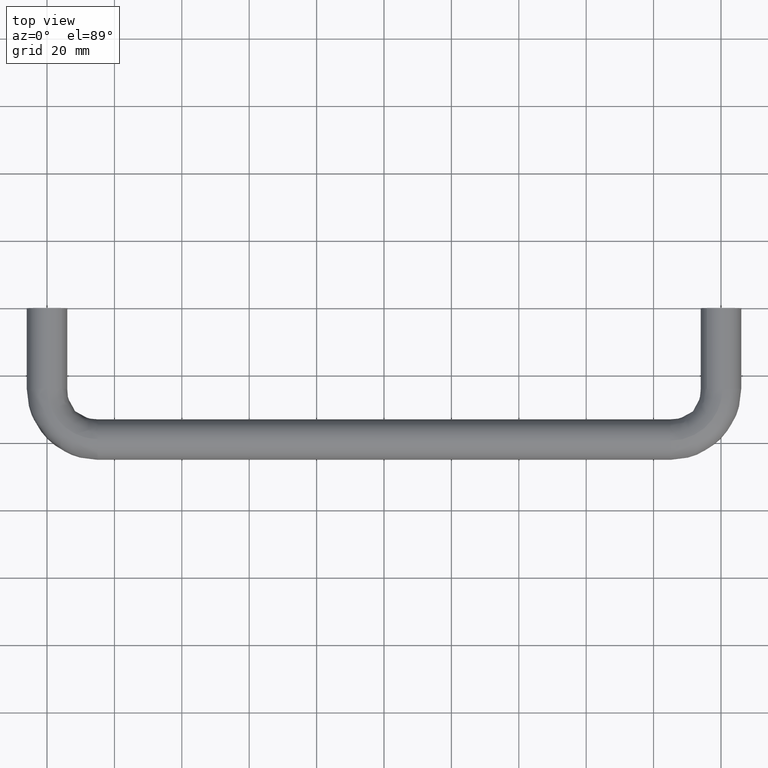
[diagram: clean part render]
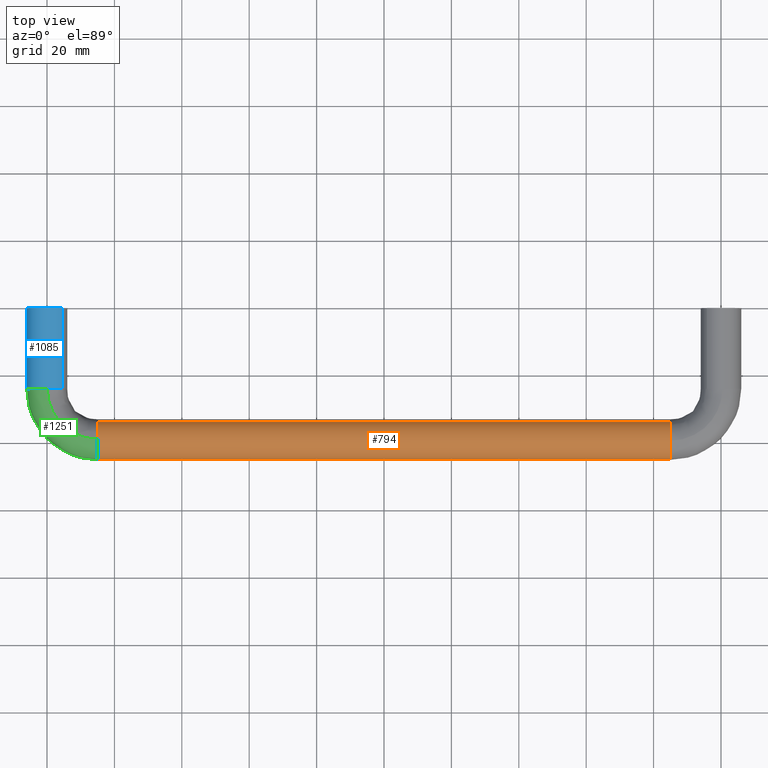
[diagram: same view with three faces highlighted in distinct colors, each labeled with its STEP entity id]
A machine part, top view with three faces highlighted in distinct colors.
Their STEP definitions:

[orange] entity #794 — the highlighted face is a freeform B-spline surface patch.
#624=CARTESIAN_POINT('',(10.749999999235488,-33.626367044185031,2.669095138090656));
#625=CARTESIAN_POINT('',(10.749999999235490,-34.027321464704933,3.476328217622891));
#626=CARTESIAN_POINT('',(10.749999999235490,-34.647753773926283,4.130127454162523));
#627=CARTESIAN_POINT('',(10.749999999235490,-38.777881228088788,8.482373680236247));
#628=CARTESIAN_POINT('',(10.749999999235490,-43.130127454162519,4.352246226073724));
#629=CARTESIAN_POINT('',(10.749999999235490,-47.482373680236243,0.222118771911202));
#630=CARTESIAN_POINT('',(10.749999999235490,-43.352246226073717,-4.130127454162523));
#631=CARTESIAN_POINT('',(10.749999999235488,-39.222118771911205,-8.482373680236247));
#632=CARTESIAN_POINT('',(10.749999999235490,-34.869872545837481,-4.352246226073724));
#633=CARTESIAN_POINT('',(189.356250001950540,-33.626367044184988,2.669095138090656));
#634=CARTESIAN_POINT('',(189.356250001950510,-34.027321464704897,3.476328217622891));
#635=CARTESIAN_POINT('',(189.356250001950510,-34.647753773926247,4.130127454162523));
#636=CARTESIAN_POINT('',(189.356250001950490,-38.777881228088773,8.482373680236247));
#637=CARTESIAN_POINT('',(189.356250001950510,-43.130127454162491,4.352246226073724));
#638=CARTESIAN_POINT('',(189.356250001950490,-47.482373680236208,0.222118771911202));
#639=CARTESIAN_POINT('',(189.356250001950510,-43.352246226073703,-4.130127454162523));
#640=CARTESIAN_POINT('',(189.356250001950490,-39.222118771911184,-8.482373680236247));
#641=CARTESIAN_POINT('',(189.356250001950510,-34.869872545837453,-4.352246226073724));
#649=(BOUNDED_SURFACE()B_SPLINE_SURFACE(2,1,((#624,#633),(#625,#634),(#626,#635),(#627,#636),(#628,#637),(#629,#638),(#630,#639),(#631,#640),(#632,#641)),.UNSPECIFIED.,.F.,.F.,.U.)B_SPLINE_SURFACE_WITH_KNOTS((3,2,2,2,3),(2,2),(0.0,1.988225099390856,11.929350596345140,21.870476093299420,31.811601590253701),(0.0,178.606250002715090),.UNSPECIFIED.)GEOMETRIC_REPRESENTATION_ITEM()RATIONAL_B_SPLINE_SURFACE(((0.906274169979695,0.906274169979695),(0.941421356237309,0.941421356237309),(1.0,1.0),(0.707106781186548,0.707106781186548),(1.0,1.0),(0.707106781186548,0.707106781186548),(1.0,1.0),(0.707106781186548,0.707106781186548),(1.0,1.0)))REPRESENTATION_ITEM('')SURFACE());
#650=CARTESIAN_POINT('',(185.0,-33.626367044212650,2.669095138146304));
#651=VERTEX_POINT('',#650);
#652=CARTESIAN_POINT('',(185.000000001884300,-39.418399516554373,5.985394042546160));
#653=VERTEX_POINT('',#652);
#654=CARTESIAN_POINT('',(184.999999999999970,-33.626367044212650,2.669095138146304));
#655=CARTESIAN_POINT('',(185.000000000000060,-35.280834709901974,6.000000000000001));
#656=CARTESIAN_POINT('',(185.0,-39.0,6.0));
#657=CARTESIAN_POINT('',(185.000000000000030,-39.209454702375979,6.0));
#658=CARTESIAN_POINT('',(185.000000001884330,-39.418399516554366,5.985394042546160));
#666=(BOUNDED_CURVE()B_SPLINE_CURVE(2,(#654,#655,#656,#657,#658),.UNSPECIFIED.,.F.,.U.)B_SPLINE_CURVE_WITH_KNOTS((3,2,3),(0.575619190625607,0.750000000000000,0.762166313872982),.UNSPECIFIED.)CURVE()GEOMETRIC_REPRESENTATION_ITEM()RATIONAL_B_SPLINE_CURVE((0.876408099965586,0.795700173772156,1.0,0.985746276674590,0.972879875523864))REPRESENTATION_ITEM(''));
#667=EDGE_CURVE('',#651,#653,#666,.T.);
#668=ORIENTED_EDGE('',*,*,#667,.F.);
#669=CARTESIAN_POINT('',(14.999999999962130,-33.626367044218853,2.669095138143554));
#670=VERTEX_POINT('',#669);
#671=CARTESIAN_POINT('',(14.999999999962130,-33.626367044218853,2.669095138143554));
#672=CARTESIAN_POINT('',(185.0,-33.626367044212650,2.669095138146304));
#673=QUASI_UNIFORM_CURVE('',1,(#671,#672),.UNSPECIFIED.,.F.,.U.);
#674=EDGE_CURVE('',#670,#651,#673,.T.);
#675=ORIENTED_EDGE('',*,*,#674,.F.);
#676=CARTESIAN_POINT('',(14.999999999641719,-38.924603760555939,5.999526265221087));
#677=VERTEX_POINT('',#676);
#678=CARTESIAN_POINT('',(14.999999999962130,-33.626367044218846,2.669095138143554));
#679=CARTESIAN_POINT('',(14.999999999863466,-35.257710391988013,5.953444298289303));
#680=CARTESIAN_POINT('',(14.999999999641721,-38.924603760555939,5.999526265221087));
#688=(BOUNDED_CURVE()B_SPLINE_CURVE(2,(#678,#679,#680),.UNSPECIFIED.,.F.,.U.)B_SPLINE_CURVE_WITH_KNOTS((3,3),(0.575619190625443,0.747784295913289),.UNSPECIFIED.)CURVE()GEOMETRIC_REPRESENTATION_ITEM()RATIONAL_B_SPLINE_CURVE((0.876408099965738,0.796725658643487,0.994854295624589))REPRESENTATION_ITEM(''));
#689=EDGE_CURVE('',#670,#677,#688,.T.);
#690=ORIENTED_EDGE('',*,*,#689,.T.);
#691=CARTESIAN_POINT('',(15.0,-45.0,0.0));
#692=VERTEX_POINT('',#691);
#693=CARTESIAN_POINT('',(14.999999999641719,-38.924603760555939,5.999526265221088));
#694=CARTESIAN_POINT('',(14.999999999999995,-38.962300391904698,5.999999999999999));
#695=CARTESIAN_POINT('',(15.0,-39.0,6.0));
#696=CARTESIAN_POINT('',(14.999999999999995,-45.0,6.0));
#697=CARTESIAN_POINT('',(15.0,-45.0,0.0));
#705=(BOUNDED_CURVE()B_SPLINE_CURVE(2,(#693,#694,#695,#696,#697),.UNSPECIFIED.,.F.,.U.)B_SPLINE_CURVE_WITH_KNOTS((3,2,3),(0.747784295913290,0.750000000000000,1.0),.UNSPECIFIED.)CURVE()GEOMETRIC_REPRESENTATION_ITEM()RATIONAL_B_SPLINE_CURVE((0.994854295624590,0.997404141192421,1.0,0.707106781186548,1.0))REPRESENTATION_ITEM(''));
#706=EDGE_CURVE('',#677,#692,#705,.T.);
#707=ORIENTED_EDGE('',*,*,#706,.T.);
#708=CARTESIAN_POINT('',(14.999999999300099,-39.418399512873421,-5.985394042803470));
#709=VERTEX_POINT('',#708);
#710=CARTESIAN_POINT('',(15.0,-45.0,0.0));
#711=CARTESIAN_POINT('',(15.000000000000005,-45.000000000000007,-5.595221077188548));
#712=CARTESIAN_POINT('',(14.999999999300096,-39.418399512873421,-5.985394042803470));
#720=(BOUNDED_CURVE()B_SPLINE_CURVE(2,(#710,#711,#712),.UNSPECIFIED.,.F.,.U.)B_SPLINE_CURVE_WITH_KNOTS((3,3),(0.0,0.237833686338552),.UNSPECIFIED.)CURVE()GEOMETRIC_REPRESENTATION_ITEM()RATIONAL_B_SPLINE_CURVE((1.0,0.721360504264130,0.972879875971277))REPRESENTATION_ITEM(''));
#721=EDGE_CURVE('',#692,#709,#720,.T.);
#722=ORIENTED_EDGE('',*,*,#721,.T.);
#723=CARTESIAN_POINT('',(15.0,-34.869874609136403,-4.352248184069436));
#724=VERTEX_POINT('',#723);
#725=CARTESIAN_POINT('',(14.999999999300098,-39.418399512873421,-5.985394042803470));
#726=CARTESIAN_POINT('',(15.000000000000002,-39.209454698681569,-6.000000000000001));
#727=CARTESIAN_POINT('',(15.0,-39.0,-6.0));
#728=CARTESIAN_POINT('',(15.000000000000005,-36.606244372761751,-6.000000000000002));
#729=CARTESIAN_POINT('',(15.000000000000002,-34.869874609136403,-4.352248184069437));
#737=(BOUNDED_CURVE()B_SPLINE_CURVE(2,(#725,#726,#727,#728,#729),.UNSPECIFIED.,.F.,.U.)B_SPLINE_CURVE_WITH_KNOTS((3,2,3),(0.237833686338552,0.250000000000000,0.371049455114185),.UNSPECIFIED.)CURVE()GEOMETRIC_REPRESENTATION_ITEM()RATIONAL_B_SPLINE_CURVE((0.972879875971277,0.985746276922417,1.0,0.858181741823967,0.853699666667547))REPRESENTATION_ITEM(''));
#738=EDGE_CURVE('',#709,#724,#737,.T.);
#739=ORIENTED_EDGE('',*,*,#738,.T.);
#740=CARTESIAN_POINT('',(184.999999999982690,-34.869872749249417,-4.352246419063802));
#741=VERTEX_POINT('',#740);
#742=CARTESIAN_POINT('',(15.0,-34.869874609136403,-4.352248184069436));
#743=CARTESIAN_POINT('',(184.999999999982690,-34.869872749249417,-4.352246419063802));
#744=QUASI_UNIFORM_CURVE('',1,(#742,#743),.UNSPECIFIED.,.F.,.U.);
#745=EDGE_CURVE('',#724,#741,#744,.T.);
#746=ORIENTED_EDGE('',*,*,#745,.T.);
#747=CARTESIAN_POINT('',(184.999999999945200,-38.924603760424773,-5.999526265219439));
#748=VERTEX_POINT('',#747);
#749=CARTESIAN_POINT('',(184.999999999945260,-38.924603760424773,-5.999526265219439));
#750=CARTESIAN_POINT('',(184.999999999966970,-36.574623301234553,-5.969993985083934));
#751=CARTESIAN_POINT('',(184.999999999982720,-34.869872749249431,-4.352246419063802));
#759=(BOUNDED_CURVE()B_SPLINE_CURVE(2,(#749,#750,#751),.UNSPECIFIED.,.F.,.U.)B_SPLINE_CURVE_WITH_KNOTS((3,3),(0.252215704094400,0.371049512555461),.UNSPECIFIED.)CURVE()GEOMETRIC_REPRESENTATION_ITEM()RATIONAL_B_SPLINE_CURVE((0.994854295606891,0.858099635266025,0.853699662413844))REPRESENTATION_ITEM(''));
#760=EDGE_CURVE('',#748,#741,#759,.T.);
#761=ORIENTED_EDGE('',*,*,#760,.F.);
#762=CARTESIAN_POINT('',(185.0,-45.0,0.0));
#763=VERTEX_POINT('',#762);
#764=CARTESIAN_POINT('',(185.0,-45.0,0.0));
#765=CARTESIAN_POINT('',(185.0,-45.0,-6.0));
#766=CARTESIAN_POINT('',(185.0,-39.0,-6.0));
#767=CARTESIAN_POINT('',(184.999999999999970,-38.962300391773532,-6.000000000000001));
#768=CARTESIAN_POINT('',(184.999999999945170,-38.924603760424780,-5.999526265219439));
#776=(BOUNDED_CURVE()B_SPLINE_CURVE(2,(#764,#765,#766,#767,#768),.UNSPECIFIED.,.F.,.U.)B_SPLINE_CURVE_WITH_KNOTS((3,2,3),(0.0,0.250000000000000,0.252215704094400),.UNSPECIFIED.)CURVE()GEOMETRIC_REPRESENTATION_ITEM()RATIONAL_B_SPLINE_CURVE((1.0,0.707106781186548,1.0,0.997404141183412,0.994854295606890))REPRESENTATION_ITEM(''));
#777=EDGE_CURVE('',#763,#748,#776,.T.);
#778=ORIENTED_EDGE('',*,*,#777,.F.);
#779=CARTESIAN_POINT('',(185.000000001884330,-39.418399516554366,5.985394042546160));
#780=CARTESIAN_POINT('',(184.999999999999970,-45.0,5.595221070289776));
#781=CARTESIAN_POINT('',(185.0,-45.0,0.0));
#789=(BOUNDED_CURVE()B_SPLINE_CURVE(2,(#779,#780,#781),.UNSPECIFIED.,.F.,.U.)B_SPLINE_CURVE_WITH_KNOTS((3,3),(0.762166313872982,1.0),.UNSPECIFIED.)CURVE()GEOMETRIC_REPRESENTATION_ITEM()RATIONAL_B_SPLINE_CURVE((0.972879875523864,0.721360504511958,1.0))REPRESENTATION_ITEM(''));
#790=EDGE_CURVE('',#653,#763,#789,.T.);
#791=ORIENTED_EDGE('',*,*,#790,.F.);
#792=EDGE_LOOP('',(#668,#675,#690,#707,#722,#739,#746,#761,#778,#791));
#793=FACE_OUTER_BOUND('',#792,.T.);
#794=ADVANCED_FACE('',(#793),#649,.T.);

[blue] entity #1085 — the highlighted face is a freeform B-spline surface patch.
#888=CARTESIAN_POINT('',(2.905318393534327,-24.0,-5.249678564654328));
#889=VERTEX_POINT('',#888);
#905=CARTESIAN_POINT('',(2.905318393534791,0.0,-5.249678564654071));
#906=VERTEX_POINT('',#905);
#907=CARTESIAN_POINT('',(2.905318393534791,0.0,-5.249678564654071));
#908=CARTESIAN_POINT('',(2.905318393534327,-24.0,-5.249678564654328));
#909=QUASI_UNIFORM_CURVE('',1,(#907,#908),.UNSPECIFIED.,.F.,.U.);
#910=EDGE_CURVE('',#906,#889,#909,.T.);
#927=CARTESIAN_POINT('',(4.423666221885295,1.110223E-016,4.053538843694539));
#928=VERTEX_POINT('',#927);
#942=CARTESIAN_POINT('',(4.423666076306624,-24.000000000093660,4.053539002548424));
#943=VERTEX_POINT('',#942);
#944=CARTESIAN_POINT('',(4.423666221885295,1.110223E-016,4.053538843694539));
#945=CARTESIAN_POINT('',(4.423666076306624,-24.000000000093660,4.053539002548424));
#946=QUASI_UNIFORM_CURVE('',1,(#944,#945),.UNSPECIFIED.,.F.,.U.);
#947=EDGE_CURVE('',#928,#943,#946,.T.);
#965=CARTESIAN_POINT('',(4.423664020860743,0.600000000086308,4.053541245693961));
#966=CARTESIAN_POINT('',(0.370122775166782,0.600000000086307,8.477205266554705));
#967=CARTESIAN_POINT('',(-4.053541245693961,0.600000000086307,4.423664020860743));
#968=CARTESIAN_POINT('',(-8.477205266554705,0.600000000086306,0.370122775166782));
#969=CARTESIAN_POINT('',(-4.423664020860743,0.600000000086307,-4.053541245693961));
#970=CARTESIAN_POINT('',(-1.230325250919644,0.600000000086307,-7.538458992124772));
#971=CARTESIAN_POINT('',(2.905318393526275,0.600000000086308,-5.249678564658782));
#972=CARTESIAN_POINT('',(4.423664020860747,-24.615000003540700,4.053541245693961));
#973=CARTESIAN_POINT('',(0.370122775166785,-24.615000003540700,8.477205266554705));
#974=CARTESIAN_POINT('',(-4.053541245693958,-24.615000003540700,4.423664020860743));
#975=CARTESIAN_POINT('',(-8.477205266554702,-24.615000003540700,0.370122775166782));
#976=CARTESIAN_POINT('',(-4.423664020860739,-24.615000003540700,-4.053541245693961));
#977=CARTESIAN_POINT('',(-1.230325250919641,-24.615000003540697,-7.538458992124772));
#978=CARTESIAN_POINT('',(2.905318393526280,-24.615000003540704,-5.249678564658782));
#986=(BOUNDED_SURFACE()B_SPLINE_SURFACE(2,1,((#965,#972),(#966,#973),(#967,#974),(#968,#975),(#969,#976),(#970,#977),(#971,#978)),.UNSPECIFIED.,.F.,.F.,.U.)B_SPLINE_SURFACE_WITH_KNOTS((3,2,2,3),(2,2),(0.0,9.941125496954280,19.882250993908560,28.232796411350151),(0.0,25.215000003627011),.UNSPECIFIED.)GEOMETRIC_REPRESENTATION_ITEM()RATIONAL_B_SPLINE_SURFACE(((1.0,1.0),(0.707106781186548,0.707106781186548),(1.0,1.0),(0.707106781186548,0.707106781186548),(1.0,1.0),(0.753969696196700,0.753969696196700),(0.921270302782944,0.921270302782944)))REPRESENTATION_ITEM('')SURFACE());
#987=CARTESIAN_POINT('',(-0.418399521864808,-24.000000003452239,-5.985394042174940));
#988=VERTEX_POINT('',#987);
#989=CARTESIAN_POINT('',(-0.418399521864808,-24.000000003452239,-5.985394042174940));
#990=CARTESIAN_POINT('',(-0.209454707705879,-24.000000000000004,-6.0));
#991=CARTESIAN_POINT('',(2.939055E-015,-24.0,-6.0));
#992=CARTESIAN_POINT('',(1.549547416939634,-24.000000000000004,-6.000000000000001));
#993=CARTESIAN_POINT('',(2.905318393534327,-23.999999999999993,-5.249678564654328));
#1001=(BOUNDED_CURVE()B_SPLINE_CURVE(2,(#989,#990,#991,#992,#993),.UNSPECIFIED.,.F.,.U.)B_SPLINE_CURVE_WITH_KNOTS((3,2,3),(0.237833685821840,0.250000000000000,0.332484288971113),.UNSPECIFIED.)CURVE()GEOMETRIC_REPRESENTATION_ITEM()RATIONAL_B_SPLINE_CURVE((0.972879874878387,0.985746276317052,1.0,0.903363644406847,0.870495137452581))REPRESENTATION_ITEM(''));
#1002=EDGE_CURVE('',#988,#889,#1001,.T.);
#1003=ORIENTED_EDGE('',*,*,#1002,.F.);
#1004=CARTESIAN_POINT('',(-5.999999999999997,-24.0,0.0));
#1005=VERTEX_POINT('',#1004);
#1006=CARTESIAN_POINT('',(-5.999999999999997,-24.0,0.0));
#1007=CARTESIAN_POINT('',(-5.999999999999997,-24.000000000000004,-5.595221060337003));
#1008=CARTESIAN_POINT('',(-0.418399521864808,-24.000000003452239,-5.985394042174940));
#1016=(BOUNDED_CURVE()B_SPLINE_CURVE(2,(#1006,#1007,#1008),.UNSPECIFIED.,.F.,.U.)B_SPLINE_CURVE_WITH_KNOTS((3,3),(0.0,0.237833685821840),.UNSPECIFIED.)CURVE()GEOMETRIC_REPRESENTATION_ITEM()RATIONAL_B_SPLINE_CURVE((1.0,0.721360504869496,0.972879874878387))REPRESENTATION_ITEM(''));
#1017=EDGE_CURVE('',#1005,#988,#1016,.T.);
#1018=ORIENTED_EDGE('',*,*,#1017,.F.);
#1019=CARTESIAN_POINT('',(0.075396239423425,-24.000000000351459,5.999526265221347));
#1020=VERTEX_POINT('',#1019);
#1021=CARTESIAN_POINT('',(0.075396239423425,-24.000000000351456,5.999526265221347));
#1022=CARTESIAN_POINT('',(0.037699608074662,-23.999999999999993,5.999999999999999));
#1023=CARTESIAN_POINT('',(2.939055E-015,-24.0,6.0));
#1024=CARTESIAN_POINT('',(-5.999999999999998,-23.999999999999996,6.0));
#1025=CARTESIAN_POINT('',(-5.999999999999997,-24.0,0.0));
#1033=(BOUNDED_CURVE()B_SPLINE_CURVE(2,(#1021,#1022,#1023,#1024,#1025),.UNSPECIFIED.,.F.,.U.)B_SPLINE_CURVE_WITH_KNOTS((3,2,3),(0.747784295914499,0.750000000000000,1.0),.UNSPECIFIED.)CURVE()GEOMETRIC_REPRESENTATION_ITEM()RATIONAL_B_SPLINE_CURVE((0.994854295627374,0.997404141193838,1.0,0.707106781186548,1.0))REPRESENTATION_ITEM(''));
#1034=EDGE_CURVE('',#1020,#1005,#1033,.T.);
#1035=ORIENTED_EDGE('',*,*,#1034,.F.);
#1036=CARTESIAN_POINT('',(4.423666076306624,-24.000000000093650,4.053539002548424));
#1037=CARTESIAN_POINT('',(2.670381788582841,-24.000000000197517,5.966914998358674));
#1038=CARTESIAN_POINT('',(0.075396239423425,-24.000000000351456,5.999526265221347));
#1046=(BOUNDED_CURVE()B_SPLINE_CURVE(2,(#1036,#1037,#1038),.UNSPECIFIED.,.F.,.U.)B_SPLINE_CURVE_WITH_KNOTS((3,3),(0.618415132535130,0.747784295914499),.UNSPECIFIED.)CURVE()GEOMETRIC_REPRESENTATION_ITEM()RATIONAL_B_SPLINE_CURVE((0.853959790286676,0.845975485573860,0.994854295627374))REPRESENTATION_ITEM(''));
#1047=EDGE_CURVE('',#943,#1020,#1046,.T.);
#1048=ORIENTED_EDGE('',*,*,#1047,.F.);
#1049=ORIENTED_EDGE('',*,*,#947,.F.);
#1050=CARTESIAN_POINT('',(-6.0,0.0,0.0));
#1051=VERTEX_POINT('',#1050);
#1052=CARTESIAN_POINT('',(4.423666221885295,1.110223E-016,4.053538843694540));
#1053=CARTESIAN_POINT('',(2.640065129699173,0.0,6.000000000000001));
#1054=CARTESIAN_POINT('',(0.0,0.0,6.0));
#1055=CARTESIAN_POINT('',(-6.0,0.0,6.0));
#1056=CARTESIAN_POINT('',(-6.0,0.0,0.0));
#1064=(BOUNDED_CURVE()B_SPLINE_CURVE(2,(#1052,#1053,#1054,#1055,#1056),.UNSPECIFIED.,.F.,.U.)B_SPLINE_CURVE_WITH_KNOTS((3,2,3),(0.618415127114441,0.750000000000000,1.0),.UNSPECIFIED.)CURVE()GEOMETRIC_REPRESENTATION_ITEM()RATIONAL_B_SPLINE_CURVE((0.853959790955776,0.845838732133559,1.0,0.707106781186548,1.0))REPRESENTATION_ITEM(''));
#1065=EDGE_CURVE('',#928,#1051,#1064,.T.);
#1066=ORIENTED_EDGE('',*,*,#1065,.T.);
#1067=CARTESIAN_POINT('',(-6.0,0.0,0.0));
#1068=CARTESIAN_POINT('',(-6.0,0.0,-6.0));
#1069=CARTESIAN_POINT('',(0.0,0.0,-6.0));
#1070=CARTESIAN_POINT('',(1.549547416940190,0.0,-6.0));
#1071=CARTESIAN_POINT('',(2.905318393534791,0.0,-5.249678564654071));
#1079=(BOUNDED_CURVE()B_SPLINE_CURVE(2,(#1067,#1068,#1069,#1070,#1071),.UNSPECIFIED.,.F.,.U.)B_SPLINE_CURVE_WITH_KNOTS((3,2,3),(0.0,0.250000000000000,0.332484288971140),.UNSPECIFIED.)CURVE()GEOMETRIC_REPRESENTATION_ITEM()RATIONAL_B_SPLINE_CURVE((1.0,0.707106781186548,1.0,0.903363644406815,0.870495137452559))REPRESENTATION_ITEM(''));
#1080=EDGE_CURVE('',#1051,#906,#1079,.T.);
#1081=ORIENTED_EDGE('',*,*,#1080,.T.);
#1082=ORIENTED_EDGE('',*,*,#910,.T.);
#1083=EDGE_LOOP('',(#1003,#1018,#1035,#1048,#1049,#1066,#1081,#1082));
#1084=FACE_OUTER_BOUND('',#1083,.T.);
#1085=ADVANCED_FACE('',(#1084),#986,.T.);

[green] entity #1251 — the highlighted face is a freeform B-spline surface patch.
#676=CARTESIAN_POINT('',(14.999999999641719,-38.924603760555939,5.999526265221087));
#677=VERTEX_POINT('',#676);
#691=CARTESIAN_POINT('',(15.0,-45.0,0.0));
#692=VERTEX_POINT('',#691);
#693=CARTESIAN_POINT('',(14.999999999641719,-38.924603760555939,5.999526265221088));
#694=CARTESIAN_POINT('',(14.999999999999995,-38.962300391904698,5.999999999999999));
#695=CARTESIAN_POINT('',(15.0,-39.0,6.0));
#696=CARTESIAN_POINT('',(14.999999999999995,-45.0,6.0));
#697=CARTESIAN_POINT('',(15.0,-45.0,0.0));
#705=(BOUNDED_CURVE()B_SPLINE_CURVE(2,(#693,#694,#695,#696,#697),.UNSPECIFIED.,.F.,.U.)B_SPLINE_CURVE_WITH_KNOTS((3,2,3),(0.747784295913290,0.750000000000000,1.0),.UNSPECIFIED.)CURVE()GEOMETRIC_REPRESENTATION_ITEM()RATIONAL_B_SPLINE_CURVE((0.994854295624590,0.997404141192421,1.0,0.707106781186548,1.0))REPRESENTATION_ITEM(''));
#706=EDGE_CURVE('',#677,#692,#705,.T.);
#708=CARTESIAN_POINT('',(14.999999999300099,-39.418399512873421,-5.985394042803470));
#709=VERTEX_POINT('',#708);
#710=CARTESIAN_POINT('',(15.0,-45.0,0.0));
#711=CARTESIAN_POINT('',(15.000000000000005,-45.000000000000007,-5.595221077188548));
#712=CARTESIAN_POINT('',(14.999999999300096,-39.418399512873421,-5.985394042803470));
#720=(BOUNDED_CURVE()B_SPLINE_CURVE(2,(#710,#711,#712),.UNSPECIFIED.,.F.,.U.)B_SPLINE_CURVE_WITH_KNOTS((3,3),(0.0,0.237833686338552),.UNSPECIFIED.)CURVE()GEOMETRIC_REPRESENTATION_ITEM()RATIONAL_B_SPLINE_CURVE((1.0,0.721360504264130,0.972879875971277))REPRESENTATION_ITEM(''));
#721=EDGE_CURVE('',#692,#709,#720,.T.);
#987=CARTESIAN_POINT('',(-0.418399521864808,-24.000000003452239,-5.985394042174940));
#988=VERTEX_POINT('',#987);
#1004=CARTESIAN_POINT('',(-5.999999999999997,-24.0,0.0));
#1005=VERTEX_POINT('',#1004);
#1006=CARTESIAN_POINT('',(-5.999999999999997,-24.0,0.0));
#1007=CARTESIAN_POINT('',(-5.999999999999997,-24.000000000000004,-5.595221060337003));
#1008=CARTESIAN_POINT('',(-0.418399521864808,-24.000000003452239,-5.985394042174940));
#1016=(BOUNDED_CURVE()B_SPLINE_CURVE(2,(#1006,#1007,#1008),.UNSPECIFIED.,.F.,.U.)B_SPLINE_CURVE_WITH_KNOTS((3,3),(0.0,0.237833685821840),.UNSPECIFIED.)CURVE()GEOMETRIC_REPRESENTATION_ITEM()RATIONAL_B_SPLINE_CURVE((1.0,0.721360504869496,0.972879874878387))REPRESENTATION_ITEM(''));
#1017=EDGE_CURVE('',#1005,#988,#1016,.T.);
#1019=CARTESIAN_POINT('',(0.075396239423425,-24.000000000351459,5.999526265221347));
#1020=VERTEX_POINT('',#1019);
#1021=CARTESIAN_POINT('',(0.075396239423425,-24.000000000351456,5.999526265221347));
#1022=CARTESIAN_POINT('',(0.037699608074662,-23.999999999999993,5.999999999999999));
#1023=CARTESIAN_POINT('',(2.939055E-015,-24.0,6.0));
#1024=CARTESIAN_POINT('',(-5.999999999999998,-23.999999999999996,6.0));
#1025=CARTESIAN_POINT('',(-5.999999999999997,-24.0,0.0));
#1033=(BOUNDED_CURVE()B_SPLINE_CURVE(2,(#1021,#1022,#1023,#1024,#1025),.UNSPECIFIED.,.F.,.U.)B_SPLINE_CURVE_WITH_KNOTS((3,2,3),(0.747784295914499,0.750000000000000,1.0),.UNSPECIFIED.)CURVE()GEOMETRIC_REPRESENTATION_ITEM()RATIONAL_B_SPLINE_CURVE((0.994854295627374,0.997404141193838,1.0,0.707106781186548,1.0))REPRESENTATION_ITEM(''));
#1034=EDGE_CURVE('',#1020,#1005,#1033,.T.);
#1190=CARTESIAN_POINT('',(-0.294990087683857,-22.939590153487764,-5.991454256922618));
#1191=CARTESIAN_POINT('',(-1.514313063490995,-40.526689037938041,-5.991454256922619));
#1192=CARTESIAN_POINT('',(16.071867456891219,-39.294191413075268,-5.991454256922620));
#1193=CARTESIAN_POINT('',(-0.338113658756832,-22.936600373231592,-5.988432535639985));
#1194=CARTESIAN_POINT('',(-1.560874463598620,-40.573285331576862,-5.988432535639985));
#1195=CARTESIAN_POINT('',(16.074889541390334,-39.337312732319297,-5.988432535639986));
#1196=CARTESIAN_POINT('',(-6.020268221445073,-22.542653557108387,-5.590277027038184));
#1197=CARTESIAN_POINT('',(-7.696012753027041,-46.713021348710150,-5.590277027038183));
#1198=CARTESIAN_POINT('',(16.473092909019567,-45.019170583957383,-5.590277027038185));
#1199=CARTESIAN_POINT('',(-5.949238030088079,-22.547578118280569,0.075396239300115));
#1200=CARTESIAN_POINT('',(-7.619320005251177,-46.636271126700692,0.075396239300115));
#1201=CARTESIAN_POINT('',(16.468115138511990,-44.948144101658706,0.075396239300115));
#1202=CARTESIAN_POINT('',(-5.874022344566289,-22.552792862002672,6.074922504523008));
#1203=CARTESIAN_POINT('',(-7.538108093973632,-46.554998354487850,6.074922504523009));
#1204=CARTESIAN_POINT('',(16.462844050064298,-44.872932343753590,6.074922504523009));
#1205=CARTESIAN_POINT('',(0.153481238121612,-22.970682910464809,5.998992842192123));
#1206=CARTESIAN_POINT('',(-1.030089416931449,-40.042102509831246,5.998992842192123));
#1207=CARTESIAN_POINT('',(16.040438746135354,-38.845743505569416,5.998992842192121));
#1208=CARTESIAN_POINT('',(0.195578353403071,-22.973601525991736,5.998462536452013));
#1209=CARTESIAN_POINT('',(-0.984636302098267,-39.996615332025797,5.998462536452013));
#1210=CARTESIAN_POINT('',(16.037488595292455,-38.803648588517369,5.998462536452013));
#1218=(BOUNDED_SURFACE()B_SPLINE_SURFACE(2,2,((#1190,#1193,#1196,#1199,#1202,#1205,#1208),(#1191,#1194,#1197,#1200,#1203,#1206,#1209),(#1192,#1195,#1198,#1201,#1204,#1207,#1210)),.UNSPECIFIED.,.F.,.F.,.U.)B_SPLINE_SURFACE_WITH_KNOTS((3,3),(3,1,2,1,3),(0.0,38.268686269470649),(0.0,0.100078425963102,9.643558903039212,19.584684399993488,19.684442280829380),.UNSPECIFIED.)GEOMETRIC_REPRESENTATION_ITEM()RATIONAL_B_SPLINE_SURFACE(((0.905759280852773,0.903259558785316,0.662386295974072,0.921487970695580,0.651590392860676,0.924196357227447,0.926904743759314),(0.591088736943289,0.589457445284680,0.432266152092013,0.601353110281207,0.425220862167464,0.603120574118584,0.604888037955960),(0.895752708098963,0.893280602255001,0.655068439230114,0.911307631818076,0.644391806205615,0.913986096860371,0.916664561902667)))REPRESENTATION_ITEM('')SURFACE());
#1219=ORIENTED_EDGE('',*,*,#721,.F.);
#1220=ORIENTED_EDGE('',*,*,#706,.F.);
#1221=CARTESIAN_POINT('',(0.075396239423425,-24.000000000351456,5.999526265221348));
#1222=CARTESIAN_POINT('',(0.075396240003026,-38.924603759983349,5.999526265222895));
#1223=CARTESIAN_POINT('',(14.999999999641719,-38.924603760555939,5.999526265221087));
#1231=(BOUNDED_CURVE()B_SPLINE_CURVE(2,(#1221,#1222,#1223),.UNSPECIFIED.,.F.,.U.)B_SPLINE_CURVE_WITH_KNOTS((3,3),(-1.747842683620043,-0.278273130995957),.UNSPECIFIED.)CURVE()GEOMETRIC_REPRESENTATION_ITEM()RATIONAL_B_SPLINE_CURVE((0.893710737946339,0.628668022907015,0.884455039437955))REPRESENTATION_ITEM(''));
#1232=EDGE_CURVE('',#1020,#677,#1231,.T.);
#1233=ORIENTED_EDGE('',*,*,#1232,.F.);
#1234=ORIENTED_EDGE('',*,*,#1034,.T.);
#1235=ORIENTED_EDGE('',*,*,#1017,.T.);
#1236=CARTESIAN_POINT('',(-0.418399521864808,-24.000000003452232,-5.985394042174940));
#1237=CARTESIAN_POINT('',(-0.418399502548165,-39.418399508052850,-5.985394043042591));
#1238=CARTESIAN_POINT('',(14.999999999300092,-39.418399512873421,-5.985394042803470));
#1246=(BOUNDED_CURVE()B_SPLINE_CURVE(2,(#1236,#1237,#1238),.UNSPECIFIED.,.F.,.U.)B_SPLINE_CURVE_WITH_KNOTS((3,3),(-1.747842683201474,-0.278273131040178),.UNSPECIFIED.)CURVE()GEOMETRIC_REPRESENTATION_ITEM()RATIONAL_B_SPLINE_CURVE((0.873607430427855,0.614526639245023,0.864559931578036))REPRESENTATION_ITEM(''));
#1247=EDGE_CURVE('',#988,#709,#1246,.T.);
#1248=ORIENTED_EDGE('',*,*,#1247,.T.);
#1249=EDGE_LOOP('',(#1219,#1220,#1233,#1234,#1235,#1248));
#1250=FACE_OUTER_BOUND('',#1249,.T.);
#1251=ADVANCED_FACE('',(#1250),#1218,.T.);